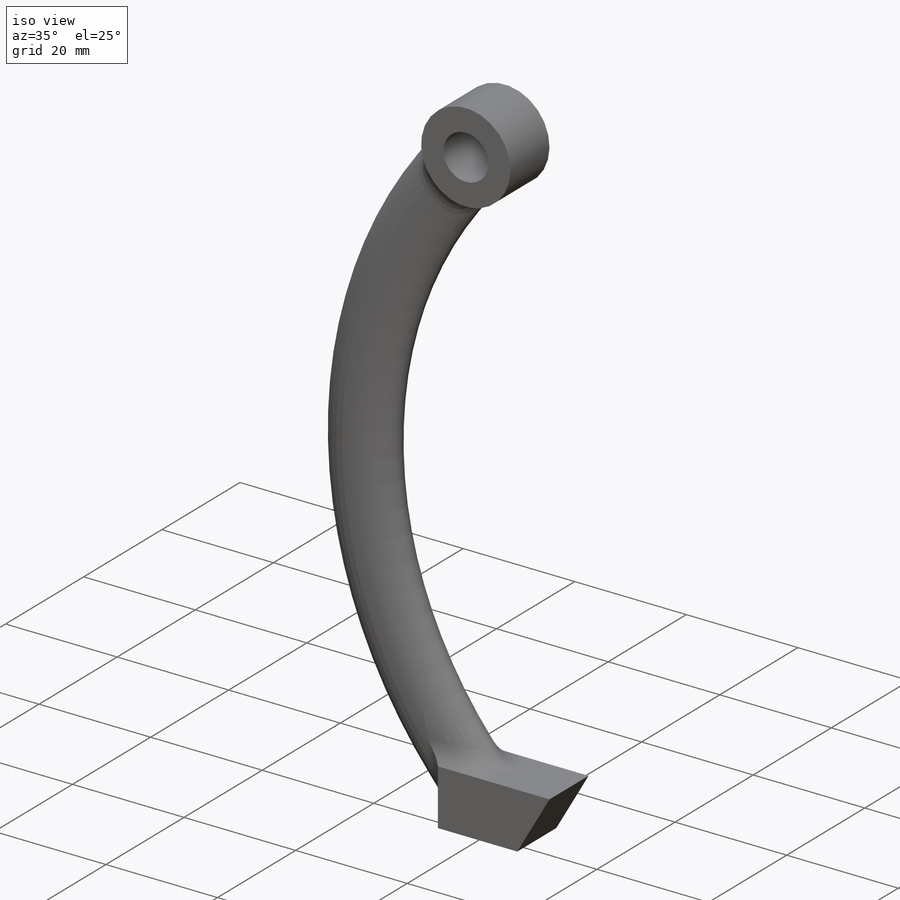
[diagram: iso view]
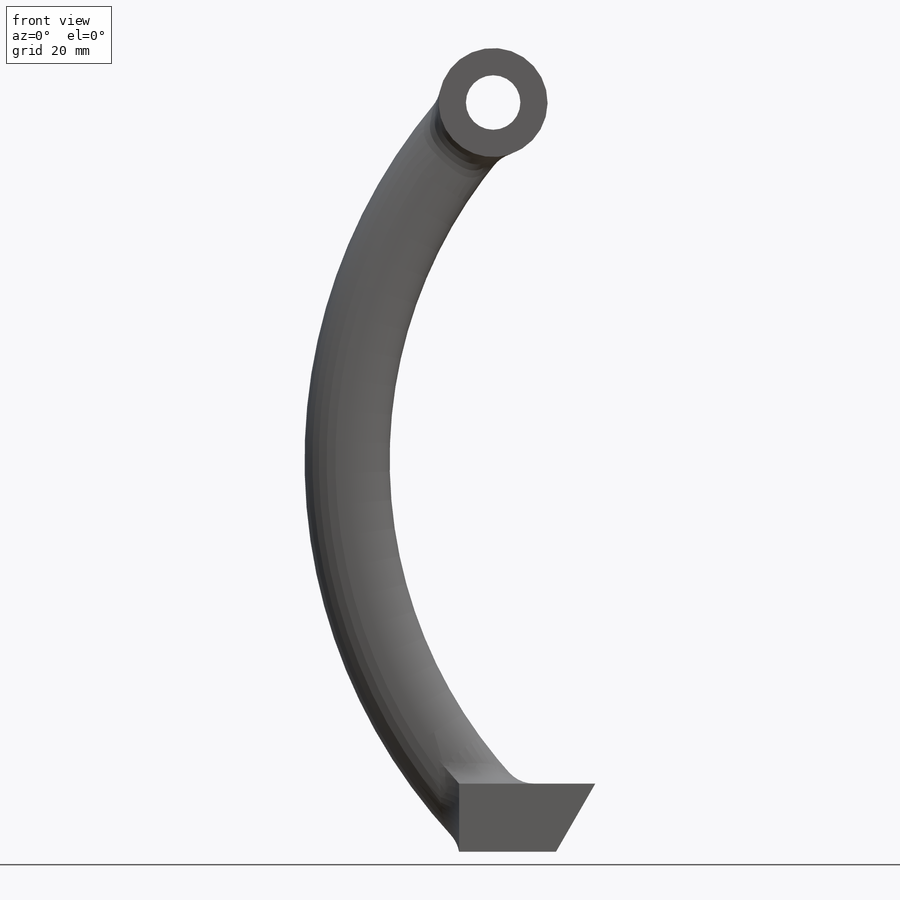
[diagram: front view]
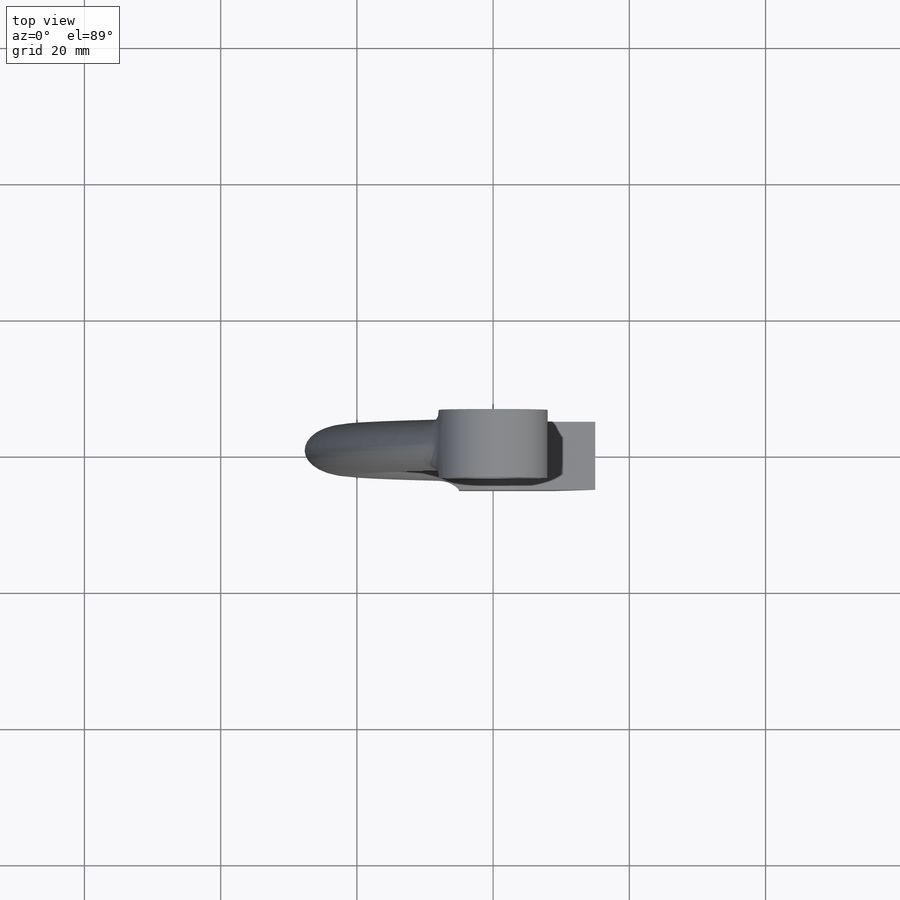
[diagram: top view]
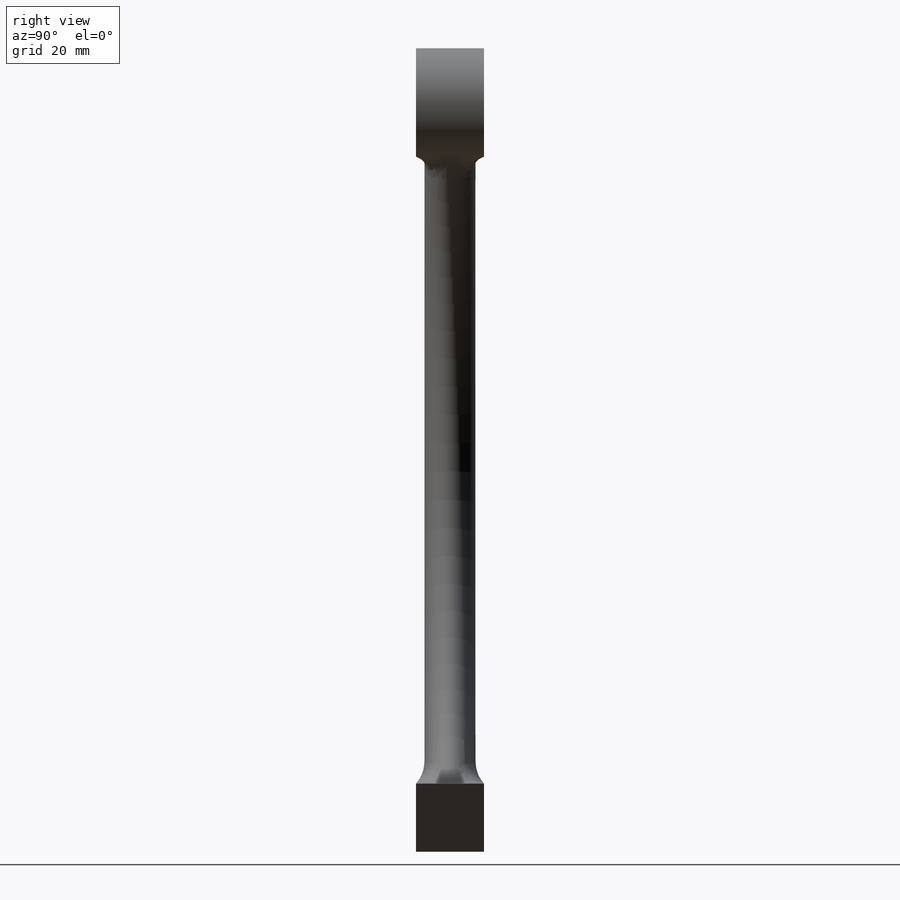
[diagram: right view]
SOLIDWORKS PART (.sldprt)
format: sldprt  version: not decoded by parser v0  size: 278,016 bytes
history: native  units: mm
features: sketch x5, plane x4, extrude x2, fillet x2, material x1, sweep x1, cut_extrude x1 (+10 scaffold rows collapsed)
feature tree (26):
  scaffold x10  (default folders/planes/origin — collapsed)
  material  "Acero aleado"
  plane  "Alzado"
  plane  "Planta"
  plane  "Vista lateral"
  sketch  "Croquis1"  dims[D1=16.0mm]
  extrude  "Saliente-Extruir1"  Depth=10mm
  sketch  "Croquis2"  dims[c1.D1=100.0mm c1.D2=10.0mm c1.D3=20.0mm c1.D4=5.0mm c1.D5=~13.994363mm c2.D5=60.0deg]
  extrude  "Saliente-Extruir2"  Depth=10mm
  sketch  "Croquis4"  dims[D2=75.0mm D1=105.0mm D3=105.0mm]
  plane  "Plano1"
  sketch  "Croquis5"  dims[c1.D1=7.5mm c1.D2=12.5mm c2.D1=7.5mm]
  sweep  "Barrer1"
  fillet  "Redondeo1"  Radius=5mm
  fillet  "Redondeo2"  Radius=5mm
  sketch  "Croquis6"  dims[D1=8.0mm]
  cut_extrude  "Cortar-Extruir1"  [1 undecoded]
decode coverage: 9 of 11 modeling features carry decoded parameters
note: ~ marks probable driven/reference dimensions
note: 1 parameter value undecoded
note: suppression state not decoded; provenance and decode notes live in map.json
